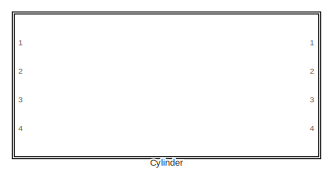
[diagram: root canvas - part 1/3, top left region]
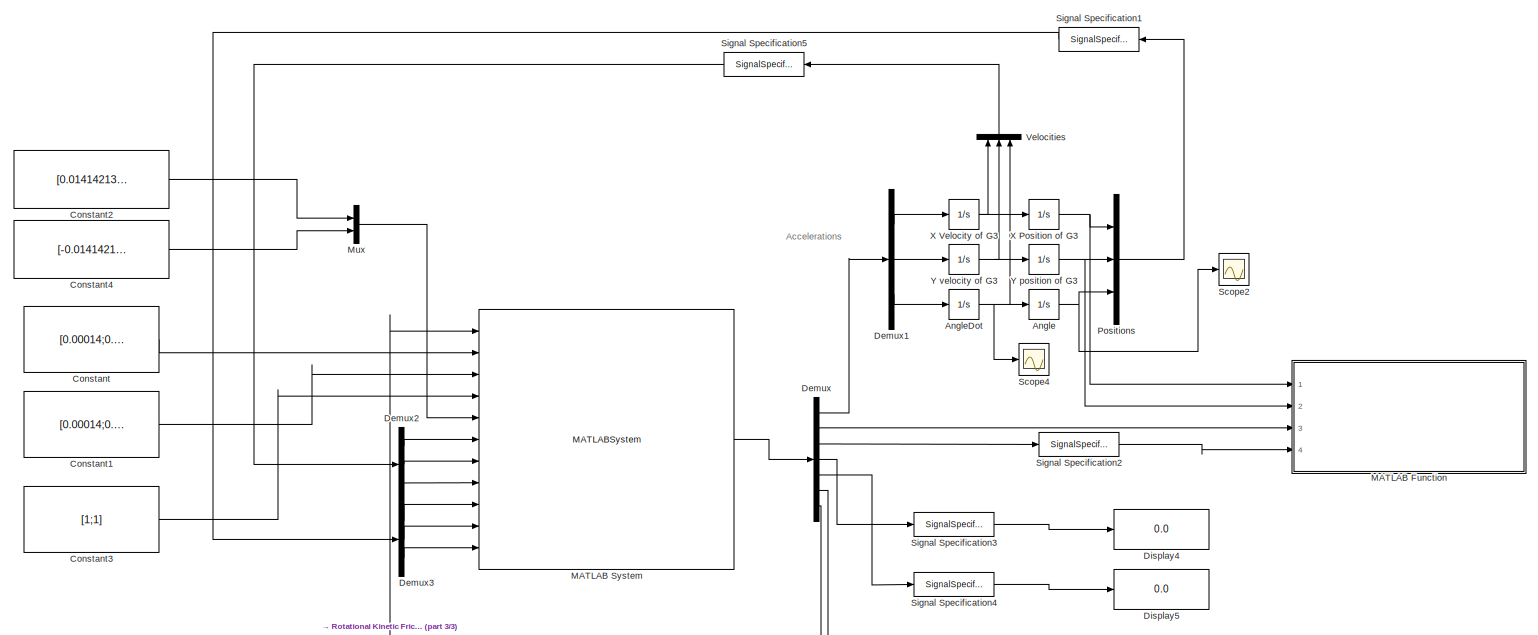
[diagram: root canvas - part 2/3, central region]
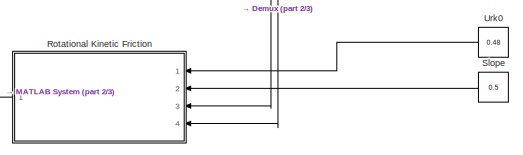
[diagram: root canvas - part 3/3, bottom right region]
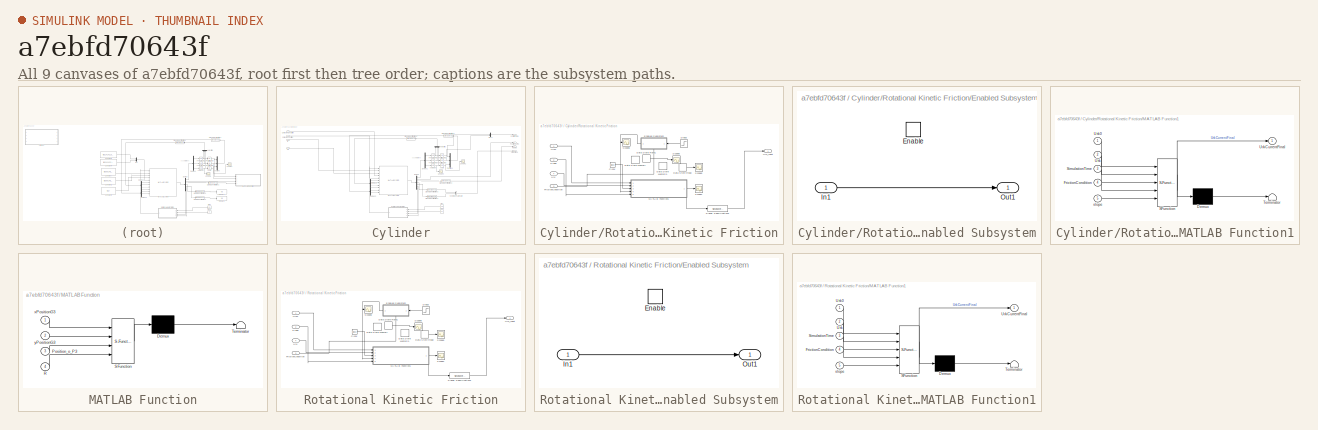
[diagram: thumbnail index - all 9 canvases of the model, root first then tree order]
MODEL slx_a7ebfd70643f
KIND model
CONFIG AbsTol = auto
CONFIG FixedStep = auto
CONFIG MaxStep = auto
CONFIG MinStep = auto
CONFIG RelTol = 1e-3
CONFIG SampleTimeConstraint = Unconstrained
CONFIG Solver = ode45
CONFIG SolverMode = Auto
CONFIG SolverName = ode45
CONFIG StartTime = 0.0
CONFIG StopTime = 2.5
BLOCK [Integrator] Angle
  Ports = [1, 1]
BLOCK [Integrator] AngleDot
  Ports = [1, 1]
BLOCK [Constant] Constant
  Value = [0.00014;0.00014]
BLOCK [Constant] Constant1
  Value = [0.00014;0.00014]
BLOCK [Constant] Constant2
  Value = [0.014142135;0.014142135 ]
BLOCK [Constant] Constant3
  Value = [1;1]
BLOCK [Constant] Constant4
  Value = [-0.014142135;0.014142135 ]
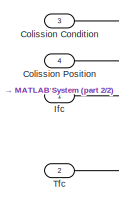
[diagram: Cylinder - part 1/2, top left region]
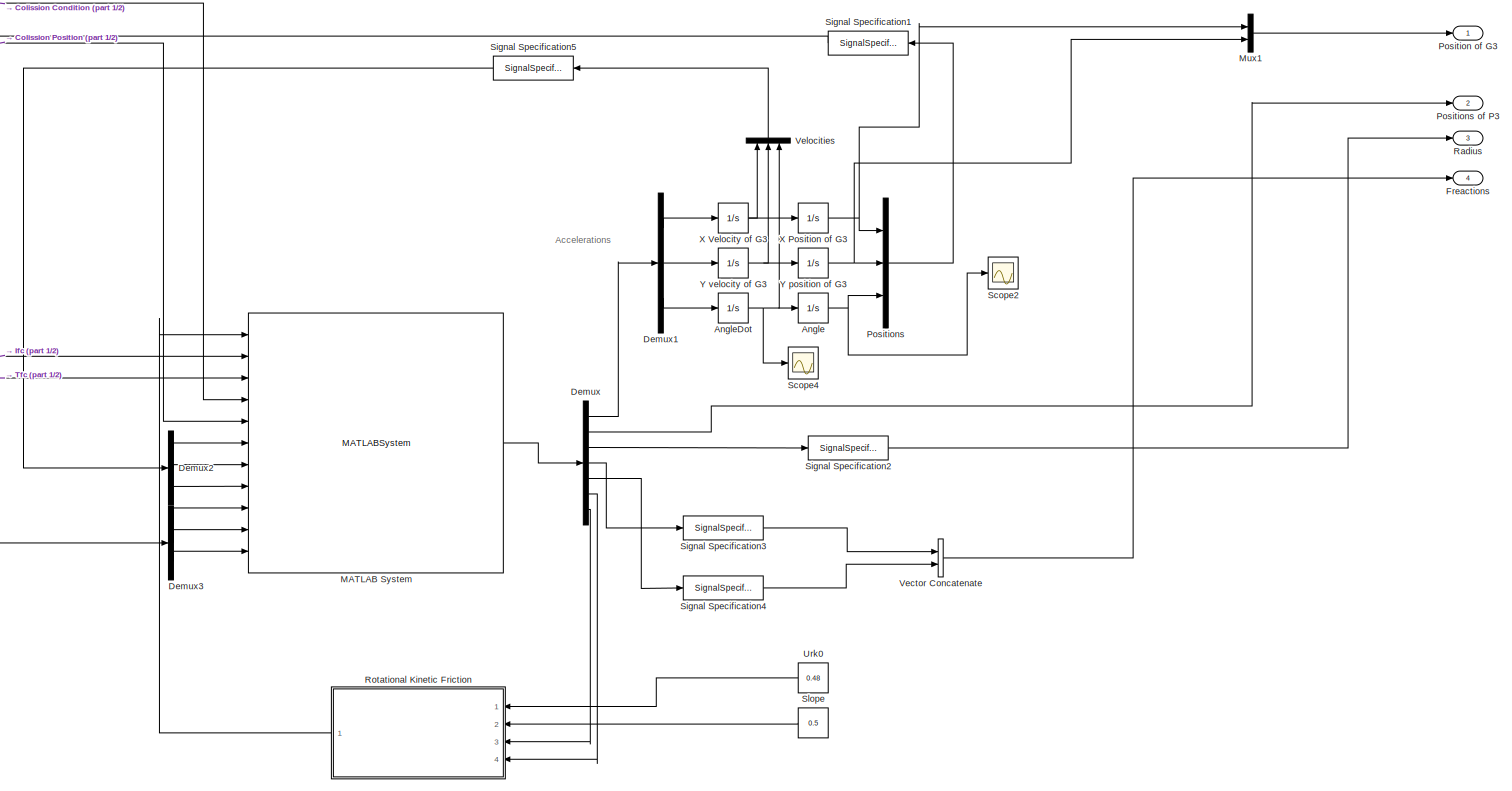
[diagram: Cylinder - part 2/2, center side, full height]
BLOCK [SubSystem] Cylinder
  Ports = [4, 4]
  RequestExecContextInheritance = off
BLOCK [Outport] Cylinder/ Position of G3
  IconDisplay = Port number
BLOCK [Integrator] Cylinder/Angle
  Ports = [1, 1]
BLOCK [Integrator] Cylinder/AngleDot
  Ports = [1, 1]
BLOCK [Inport] Cylinder/Colission Condition
  IconDisplay = Port number
  Port = 3
BLOCK [Inport] Cylinder/Colission Position
  IconDisplay = Port number
  Port = 4
BLOCK [Demux] Cylinder/Demux
  DisplayOption = bar
  Outputs = 7
  Ports = [1, 7]
BLOCK [Demux] Cylinder/Demux1
  DisplayOption = bar
  Outputs = 3
  Ports = [1, 3]
BLOCK [Demux] Cylinder/Demux2
  DisplayOption = bar
  Outputs = 3
  Ports = [1, 3]
BLOCK [Demux] Cylinder/Demux3
  DisplayOption = bar
  Outputs = 3
  Ports = [1, 3]
BLOCK [Outport] Cylinder/Freactions
  IconDisplay = Port number
  Port = 4
BLOCK [Inport] Cylinder/Ifc
  IconDisplay = Port number
BLOCK [MATLABSystem] Cylinder/MATLAB System
  F_k_x = 0.0141264
  F_k_y = 0.0141264
  F_s_x = 0.014715
  F_s_y = 0.014715
  Iz = 6.0000000000000008e-07
  M = 0.003
  MaskDisplay = disp('Cylinder');\nport_label('input',1,'Urk');\nport_label('input',2,'IndexFext');\nport_label('input',3,'ThumbFext');\nport_label('input',4,'CollisionCondition');\nport_label('input',5,'CollisionPosition');\nport_label('input',6,'xDotG3');\nport_label('input',7,'yDotG3');\nport_label('input',8,'angleDot');\nport_label('input',9,'xPositionG3');\nport_label('input',10,'yPositionG3');\nport_label('input',11,'...<+50ch>
  MaskType = Cylinder
  Ports = [11, 1]
  Position_G3_P3_frame_cylinder = [0;0.02]
  Position_o_G3 = [ 0; 0 ]
  R = 0.02
  SimulateUsing = Code generation
  System = Cylinder
  T_k = 0.000188352
  T_s = 0.0001962
  Uck = 0.4
  Ucs = 0.5
  Uk = 0.48
  Urk = 0.48
  Urs = 0.5
  Us = 0.5
  g = 9.81
BLOCK [Mux] Cylinder/Mux1
  DisplayOption = bar
  Inputs = 2
  Ports = [2, 1]
BLOCK [Mux] Cylinder/Positions
  DisplayOption = bar
  Inputs = 3
  Ports = [3, 1]
BLOCK [Outport] Cylinder/Positions of P3
  IconDisplay = Port number
  Port = 2
BLOCK [Outport] Cylinder/Radius
  IconDisplay = Port number
  Port = 3
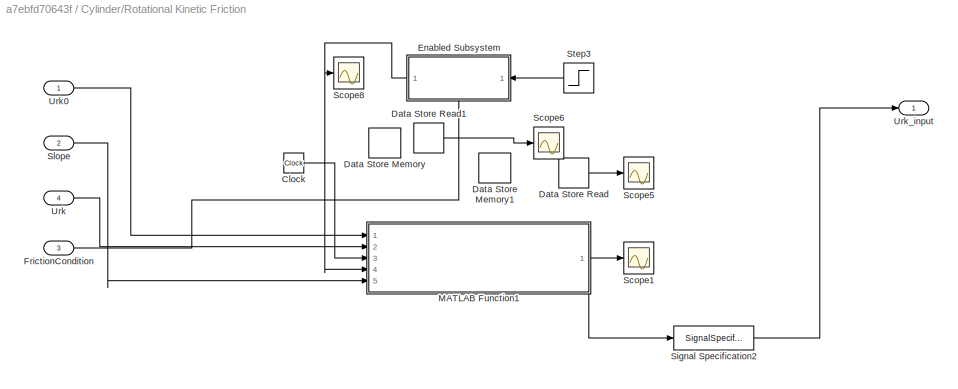
BLOCK [SubSystem] Cylinder/Rotational Kinetic Friction
  Ports = [4, 1]
  RequestExecContextInheritance = off
BLOCK [Clock] Cylinder/Rotational Kinetic Friction/Clock
BLOCK [DataStoreMemory] Cylinder/Rotational Kinetic Friction/Data Store Memory
  DataStoreName = hold_urk
  OutDataTypeStr = double
  ReadBeforeWriteMsg = warning
  SignalType = real
  WriteAfterReadMsg = warning
  WriteAfterWriteMsg = warning
BLOCK [DataStoreMemory] Cylinder/Rotational Kinetic Friction/Data Store Memory1
  DataStoreName = ChangeTime
  OutDataTypeStr = double
  ReadBeforeWriteMsg = warning
  SignalType = real
  WriteAfterReadMsg = warning
  WriteAfterWriteMsg = warning
BLOCK [DataStoreRead] Cylinder/Rotational Kinetic Friction/Data Store Read
  DataStoreName = ChangeTime
  Ports = [0, 1]
BLOCK [DataStoreRead] Cylinder/Rotational Kinetic Friction/Data Store Read1
  DataStoreName = hold_urk
  Ports = [0, 1]
BLOCK [SubSystem] Cylinder/Rotational Kinetic Friction/Enabled Subsystem
  Ports = [1, 1, 1]
  RequestExecContextInheritance = off
  TreatAsAtomicUnit = on
BLOCK [EnablePort] Cylinder/Rotational Kinetic Friction/Enabled Subsystem/Enable
  Ports = []
BLOCK [Inport] Cylinder/Rotational Kinetic Friction/Enabled Subsystem/In1
  IconDisplay = Port number
BLOCK [Outport] Cylinder/Rotational Kinetic Friction/Enabled Subsystem/Out1
  IconDisplay = Port number
BLOCK [Inport] Cylinder/Rotational Kinetic Friction/FrictionCondition
  IconDisplay = Port number
  Port = 3
BLOCK [SubSystem] Cylinder/Rotational Kinetic Friction/MATLAB Function1
  ErrorFcn = Stateflow.Translate.translate
  PermitHierarchicalResolution = ExplicitOnly
  Ports = [5, 1]
  RequestExecContextInheritance = off
  SFBlockType = MATLAB Function
  TreatAsAtomicUnit = on
BLOCK [Demux] Cylinder/Rotational Kinetic Friction/MATLAB Function1/ Demux 
  Outputs = 1
  Ports = [1, 1]
BLOCK [S-Function] Cylinder/Rotational Kinetic Friction/MATLAB Function1/ SFunction 
  EnableBusSupport = on
  FunctionName = sf_sfun
  PortCounts = [5 2]
  Ports = [5, 2]
  Tag = Stateflow S-Function CylinderSim 4
BLOCK [Terminator] Cylinder/Rotational Kinetic Friction/MATLAB Function1/ Terminator 
BLOCK [Inport] Cylinder/Rotational Kinetic Friction/MATLAB Function1/FrictionCondition
  IconDisplay = Port number
  Port = 4
BLOCK [Inport] Cylinder/Rotational Kinetic Friction/MATLAB Function1/SimulationTime
  IconDisplay = Port number
  Port = 3
BLOCK [Inport] Cylinder/Rotational Kinetic Friction/MATLAB Function1/Urk
  IconDisplay = Port number
  Port = 2
BLOCK [Inport] Cylinder/Rotational Kinetic Friction/MATLAB Function1/Urk0
  IconDisplay = Port number
BLOCK [Outport] Cylinder/Rotational Kinetic Friction/MATLAB Function1/UrkCurrentFinal
  IconDisplay = Port number
BLOCK [Inport] Cylinder/Rotational Kinetic Friction/MATLAB Function1/slope
  IconDisplay = Port number
  Port = 5
BLOCK [Scope] Cylinder/Rotational Kinetic Friction/Scope1
  Floating = off
  NumInputPorts = 1
  Ports = [1]
  SaveName = ScopeData7
  YMax = 1
BLOCK [Scope] Cylinder/Rotational Kinetic Friction/Scope5
  Floating = off
  NumInputPorts = 1
  Ports = [1]
  SaveName = ScopeData9
  YMax = 1
BLOCK [Scope] Cylinder/Rotational Kinetic Friction/Scope6
  Floating = off
  NumInputPorts = 1
  Ports = [1]
  SaveName = ScopeData10
  YMax = 1
BLOCK [Scope] Cylinder/Rotational Kinetic Friction/Scope8
  Floating = off
  NumInputPorts = 1
  Ports = [1]
  SaveName = ScopeData11
BLOCK [SignalSpecification] Cylinder/Rotational Kinetic Friction/Signal Specification2
  Dimensions = 1
BLOCK [Inport] Cylinder/Rotational Kinetic Friction/Slope
  IconDisplay = Port number
  Port = 2
BLOCK [Step] Cylinder/Rotational Kinetic Friction/Step3
  SampleTime = 0
  Time = 0
BLOCK [Inport] Cylinder/Rotational Kinetic Friction/Urk
  IconDisplay = Port number
  Port = 4
BLOCK [Inport] Cylinder/Rotational Kinetic Friction/Urk0
  IconDisplay = Port number
BLOCK [Outport] Cylinder/Rotational Kinetic Friction/Urk_input
  IconDisplay = Port number
BLOCK [Scope] Cylinder/Scope2
  Floating = off
  NumInputPorts = 1
  Ports = [1]
BLOCK [Scope] Cylinder/Scope4
  Floating = off
  NumInputPorts = 1
  Ports = [1]
  SaveName = ScopeData1
BLOCK [SignalSpecification] Cylinder/Signal Specification1
  Dimensions = 3
BLOCK [SignalSpecification] Cylinder/Signal Specification2
  Dimensions = 1
BLOCK [SignalSpecification] Cylinder/Signal Specification3
  Dimensions = 2
BLOCK [SignalSpecification] Cylinder/Signal Specification4
  Dimensions = 2
BLOCK [SignalSpecification] Cylinder/Signal Specification5
  Dimensions = 3
BLOCK [Constant] Cylinder/Slope
  Value = 0.5
BLOCK [Inport] Cylinder/Tfc
  IconDisplay = Port number
  Port = 2
BLOCK [Constant] Cylinder/Urk0
  Value = 0.48
BLOCK [Concatenate] Cylinder/Vector Concatenate
  ConcatenateDimension = 2
  Mode = Multidimensional array
  Ports = [2, 1]
BLOCK [Mux] Cylinder/Velocities
  DisplayOption = bar
  Inputs = 3
  Ports = [3, 1]
BLOCK [Integrator] Cylinder/X Position of G3
  Ports = [1, 1]
BLOCK [Integrator] Cylinder/X Velocity of G3
  Ports = [1, 1]
BLOCK [Integrator] Cylinder/Y position of G3
  Ports = [1, 1]
BLOCK [Integrator] Cylinder/Y velocity of G3 
  Ports = [1, 1]
BLOCK [Demux] Demux
  DisplayOption = bar
  Outputs = 7
  Ports = [1, 7]
BLOCK [Demux] Demux1
  DisplayOption = bar
  Outputs = 3
  Ports = [1, 3]
BLOCK [Demux] Demux2
  DisplayOption = bar
  Outputs = 3
  Ports = [1, 3]
BLOCK [Demux] Demux3
  DisplayOption = bar
  Outputs = 3
  Ports = [1, 3]
BLOCK [Display] Display4
  Decimation = 1
  Ports = [1]
BLOCK [Display] Display5
  Decimation = 1
  Ports = [1]
BLOCK [SubSystem] MATLAB Function
  ErrorFcn = Stateflow.Translate.translate
  PermitHierarchicalResolution = ExplicitOnly
  Ports = [4]
  RequestExecContextInheritance = off
  SFBlockType = MATLAB Function
  TreatAsAtomicUnit = on
BLOCK [Demux] MATLAB Function/ Demux 
  Outputs = 1
  Ports = [1, 1]
BLOCK [S-Function] MATLAB Function/ SFunction 
  EnableBusSupport = on
  FunctionName = sf_sfun
  PortCounts = [4 1]
  Ports = [4, 1]
  Tag = Stateflow S-Function CylinderSim 2
BLOCK [Terminator] MATLAB Function/ Terminator 
BLOCK [Inport] MATLAB Function/Position_o_P3
  IconDisplay = Port number
  Port = 3
BLOCK [Inport] MATLAB Function/R
  IconDisplay = Port number
  Port = 4
BLOCK [Inport] MATLAB Function/xPositionG3
  IconDisplay = Port number
BLOCK [Inport] MATLAB Function/yPositionG3
  IconDisplay = Port number
  Port = 2
BLOCK [MATLABSystem] MATLAB System
  F_k_x = 0.0141264
  F_k_y = 0.0141264
  F_s_x = 0.014715
  F_s_y = 0.014715
  Iz = 6.0000000000000008e-07
  M = 0.003
  MaskDisplay = disp('Cylinder');\nport_label('input',1,'Urk');\nport_label('input',2,'IndexFext');\nport_label('input',3,'ThumbFext');\nport_label('input',4,'CollisionCondition');\nport_label('input',5,'CollisionPosition');\nport_label('input',6,'xDotG3');\nport_label('input',7,'yDotG3');\nport_label('input',8,'angleDot');\nport_label('input',9,'xPositionG3');\nport_label('input',10,'yPositionG3');\nport_label('input',11,'...<+50ch>
  MaskType = Cylinder
  Ports = [11, 1]
  Position_G3_P3_frame_cylinder = [0;0.02]
  Position_o_G3 = [ 0; 0 ]
  R = 0.02
  SimulateUsing = Code generation
  System = Cylinder
  T_k = 0.000188352
  T_s = 0.0001962
  Uck = 0.4
  Ucs = 0.5
  Uk = 0.48
  Urk = 0.48
  Urs = 0.5
  Us = 0.5
  g = 9.81
BLOCK [Mux] Mux
  DisplayOption = bar
  Inputs = 2
  Ports = [2, 1]
BLOCK [Mux] Positions
  DisplayOption = bar
  Inputs = 3
  Ports = [3, 1]
BLOCK [SubSystem] Rotational Kinetic Friction
  Ports = [4, 1]
  RequestExecContextInheritance = off
BLOCK [Clock] Rotational Kinetic Friction/Clock
BLOCK [DataStoreMemory] Rotational Kinetic Friction/Data Store Memory
  DataStoreName = hold_urk
  OutDataTypeStr = double
  ReadBeforeWriteMsg = warning
  SignalType = real
  WriteAfterReadMsg = warning
  WriteAfterWriteMsg = warning
BLOCK [DataStoreMemory] Rotational Kinetic Friction/Data Store Memory1
  DataStoreName = ChangeTime
  OutDataTypeStr = double
  ReadBeforeWriteMsg = warning
  SignalType = real
  WriteAfterReadMsg = warning
  WriteAfterWriteMsg = warning
BLOCK [DataStoreRead] Rotational Kinetic Friction/Data Store Read
  DataStoreName = ChangeTime
  Ports = [0, 1]
BLOCK [DataStoreRead] Rotational Kinetic Friction/Data Store Read1
  DataStoreName = hold_urk
  Ports = [0, 1]
BLOCK [SubSystem] Rotational Kinetic Friction/Enabled Subsystem
  Ports = [1, 1, 1]
  RequestExecContextInheritance = off
  TreatAsAtomicUnit = on
BLOCK [EnablePort] Rotational Kinetic Friction/Enabled Subsystem/Enable
  Ports = []
BLOCK [Inport] Rotational Kinetic Friction/Enabled Subsystem/In1
  IconDisplay = Port number
BLOCK [Outport] Rotational Kinetic Friction/Enabled Subsystem/Out1
  IconDisplay = Port number
BLOCK [Inport] Rotational Kinetic Friction/FrictionCondition
  IconDisplay = Port number
  Port = 3
BLOCK [SubSystem] Rotational Kinetic Friction/MATLAB Function1
  ErrorFcn = Stateflow.Translate.translate
  PermitHierarchicalResolution = ExplicitOnly
  Ports = [5, 1]
  RequestExecContextInheritance = off
  SFBlockType = MATLAB Function
  TreatAsAtomicUnit = on
BLOCK [Demux] Rotational Kinetic Friction/MATLAB Function1/ Demux 
  Outputs = 1
  Ports = [1, 1]
BLOCK [S-Function] Rotational Kinetic Friction/MATLAB Function1/ SFunction 
  EnableBusSupport = on
  FunctionName = sf_sfun
  PortCounts = [5 2]
  Ports = [5, 2]
  Tag = Stateflow S-Function CylinderSim 3
BLOCK [Terminator] Rotational Kinetic Friction/MATLAB Function1/ Terminator 
BLOCK [Inport] Rotational Kinetic Friction/MATLAB Function1/FrictionCondition
  IconDisplay = Port number
  Port = 4
BLOCK [Inport] Rotational Kinetic Friction/MATLAB Function1/SimulationTime
  IconDisplay = Port number
  Port = 3
BLOCK [Inport] Rotational Kinetic Friction/MATLAB Function1/Urk
  IconDisplay = Port number
  Port = 2
BLOCK [Inport] Rotational Kinetic Friction/MATLAB Function1/Urk0
  IconDisplay = Port number
BLOCK [Outport] Rotational Kinetic Friction/MATLAB Function1/UrkCurrentFinal
  IconDisplay = Port number
BLOCK [Inport] Rotational Kinetic Friction/MATLAB Function1/slope
  IconDisplay = Port number
  Port = 5
BLOCK [Scope] Rotational Kinetic Friction/Scope1
  Floating = off
  NumInputPorts = 1
  Ports = [1]
  SaveName = ScopeData7
  YMax = 1
BLOCK [Scope] Rotational Kinetic Friction/Scope5
  Floating = off
  NumInputPorts = 1
  Ports = [1]
  SaveName = ScopeData9
  YMax = 1
BLOCK [Scope] Rotational Kinetic Friction/Scope6
  Floating = off
  NumInputPorts = 1
  Ports = [1]
  SaveName = ScopeData10
  YMax = 1
BLOCK [Scope] Rotational Kinetic Friction/Scope8
  Floating = off
  NumInputPorts = 1
  Ports = [1]
  SaveName = ScopeData11
BLOCK [SignalSpecification] Rotational Kinetic Friction/Signal Specification2
  Dimensions = 1
BLOCK [Inport] Rotational Kinetic Friction/Slope
  IconDisplay = Port number
  Port = 2
BLOCK [Step] Rotational Kinetic Friction/Step3
  SampleTime = 0
  Time = 0
BLOCK [Inport] Rotational Kinetic Friction/Urk
  IconDisplay = Port number
  Port = 4
BLOCK [Inport] Rotational Kinetic Friction/Urk0
  IconDisplay = Port number
BLOCK [Outport] Rotational Kinetic Friction/Urk_input
  IconDisplay = Port number
BLOCK [Scope] Scope2
  Floating = off
  NumInputPorts = 1
  Ports = [1]
  SaveName = ScopeData4
BLOCK [Scope] Scope4
  Floating = off
  NumInputPorts = 1
  Ports = [1]
  SaveName = ScopeData6
BLOCK [SignalSpecification] Signal Specification1
  Dimensions = 3
BLOCK [SignalSpecification] Signal Specification2
  Dimensions = 1
BLOCK [SignalSpecification] Signal Specification3
  Dimensions = 2
BLOCK [SignalSpecification] Signal Specification4
  Dimensions = 2
BLOCK [SignalSpecification] Signal Specification5
  Dimensions = 3
BLOCK [Constant] Slope
  Value = 0.5
BLOCK [Constant] Urk0
  Value = 0.48
BLOCK [Mux] Velocities
  DisplayOption = bar
  Inputs = 3
  Ports = [3, 1]
BLOCK [Integrator] X Position of G3
  Ports = [1, 1]
BLOCK [Integrator] X Velocity of G3
  Ports = [1, 1]
BLOCK [Integrator] Y position of G3
  Ports = [1, 1]
BLOCK [Integrator] Y velocity of G3 
  Ports = [1, 1]
ANNOTATION (root): Accelerations
ANNOTATION Cylinder: Accelerations
NET Angle:1 -> Positions:3, Scope2:1
NET AngleDot:1 -> Angle:1, Scope4:1, Velocities:3
LINE Constant1:1 -> MATLAB System:3
LINE Constant2:1 -> Mux:1
LINE Constant3:1 -> MATLAB System:4
LINE Constant4:1 -> Mux:2
LINE Constant:1 -> MATLAB System:2
NET Cylinder/Angle:1 -> Cylinder/Positions:3, Cylinder/Scope2:1
NET Cylinder/AngleDot:1 -> Cylinder/Angle:1, Cylinder/Scope4:1, Cylinder/Velocities:3
LINE Cylinder/Colission Condition:1 -> Cylinder/MATLAB System:4
LINE Cylinder/Colission Position:1 -> Cylinder/MATLAB System:5
LINE Cylinder/Demux1:1 -> Cylinder/X Velocity of G3:1
LINE Cylinder/Demux1:2 -> Cylinder/Y velocity of G3 :1
LINE Cylinder/Demux1:3 -> Cylinder/AngleDot:1
LINE Cylinder/Demux2:1 -> Cylinder/MATLAB System:6
LINE Cylinder/Demux2:2 -> Cylinder/MATLAB System:7
LINE Cylinder/Demux2:3 -> Cylinder/MATLAB System:8
LINE Cylinder/Demux3:1 -> Cylinder/MATLAB System:9
LINE Cylinder/Demux3:2 -> Cylinder/MATLAB System:10
LINE Cylinder/Demux3:3 -> Cylinder/MATLAB System:11
LINE Cylinder/Demux:1 -> Cylinder/Demux1:1
LINE Cylinder/Demux:2 -> Cylinder/Positions of P3:1
LINE Cylinder/Demux:3 -> Cylinder/Signal Specification2:1
LINE Cylinder/Demux:4 -> Cylinder/Signal Specification3:1
LINE Cylinder/Demux:5 -> Cylinder/Signal Specification4:1
LINE Cylinder/Demux:6 -> Cylinder/Rotational Kinetic Friction:4
LINE Cylinder/Demux:7 -> Cylinder/Rotational Kinetic Friction:3
LINE Cylinder/Ifc:1 -> Cylinder/MATLAB System:2
LINE Cylinder/MATLAB System:1 -> Cylinder/Demux:1
LINE Cylinder/Mux1:1 -> Cylinder/ Position of G3:1
LINE Cylinder/Positions:1 -> Cylinder/Signal Specification1:1
LINE Cylinder/Rotational Kinetic Friction/Clock:1 -> Cylinder/Rotational Kinetic Friction/MATLAB Function1:3
LINE Cylinder/Rotational Kinetic Friction/Data Store Read1:1 -> Cylinder/Rotational Kinetic Friction/Scope6:1
LINE Cylinder/Rotational Kinetic Friction/Data Store Read:1 -> Cylinder/Rotational Kinetic Friction/Scope5:1
LINE Cylinder/Rotational Kinetic Friction/Enabled Subsystem/In1:1 -> Cylinder/Rotational Kinetic Friction/Enabled Subsystem/Out1:1
NET Cylinder/Rotational Kinetic Friction/Enabled Subsystem:1 -> Cylinder/Rotational Kinetic Friction/MATLAB Function1:4, Cylinder/Rotational Kinetic Friction/Scope8:1
LINE Cylinder/Rotational Kinetic Friction/FrictionCondition:1 -> Cylinder/Rotational Kinetic Friction/Enabled Subsystem:enable
NET Cylinder/Rotational Kinetic Friction/MATLAB Function1:1 -> Cylinder/Rotational Kinetic Friction/Scope1:1, Cylinder/Rotational Kinetic Friction/Signal Specification2:1
LINE Cylinder/Rotational Kinetic Friction/Signal Specification2:1 -> Cylinder/Rotational Kinetic Friction/Urk_input:1
LINE Cylinder/Rotational Kinetic Friction/Slope:1 -> Cylinder/Rotational Kinetic Friction/MATLAB Function1:5
LINE Cylinder/Rotational Kinetic Friction/Step3:1 -> Cylinder/Rotational Kinetic Friction/Enabled Subsystem:1
LINE Cylinder/Rotational Kinetic Friction/Urk0:1 -> Cylinder/Rotational Kinetic Friction/MATLAB Function1:1
LINE Cylinder/Rotational Kinetic Friction/Urk:1 -> Cylinder/Rotational Kinetic Friction/MATLAB Function1:2
LINE Cylinder/Rotational Kinetic Friction:1 -> Cylinder/MATLAB System:1
LINE Cylinder/Signal Specification1:1 -> Cylinder/Demux3:1
LINE Cylinder/Signal Specification2:1 -> Cylinder/Radius:1
LINE Cylinder/Signal Specification3:1 -> Cylinder/Vector Concatenate:1
LINE Cylinder/Signal Specification4:1 -> Cylinder/Vector Concatenate:2
LINE Cylinder/Signal Specification5:1 -> Cylinder/Demux2:1
LINE Cylinder/Slope:1 -> Cylinder/Rotational Kinetic Friction:2
LINE Cylinder/Tfc:1 -> Cylinder/MATLAB System:3
LINE Cylinder/Urk0:1 -> Cylinder/Rotational Kinetic Friction:1
LINE Cylinder/Vector Concatenate:1 -> Cylinder/Freactions:1
LINE Cylinder/Velocities:1 -> Cylinder/Signal Specification5:1
NET Cylinder/X Position of G3:1 -> Cylinder/Mux1:1, Cylinder/Positions:1
NET Cylinder/X Velocity of G3:1 -> Cylinder/Velocities:1, Cylinder/X Position of G3:1
NET Cylinder/Y position of G3:1 -> Cylinder/Mux1:2, Cylinder/Positions:2
NET Cylinder/Y velocity of G3 :1 -> Cylinder/Velocities:2, Cylinder/Y position of G3:1
LINE Demux1:1 -> X Velocity of G3:1
LINE Demux1:2 -> Y velocity of G3 :1
LINE Demux1:3 -> AngleDot:1
LINE Demux2:1 -> MATLAB System:6
LINE Demux2:2 -> MATLAB System:7
LINE Demux2:3 -> MATLAB System:8
LINE Demux3:1 -> MATLAB System:9
LINE Demux3:2 -> MATLAB System:10
LINE Demux3:3 -> MATLAB System:11
LINE Demux:1 -> Demux1:1
LINE Demux:2 -> MATLAB Function:3
LINE Demux:3 -> Signal Specification2:1
LINE Demux:4 -> Signal Specification3:1
LINE Demux:5 -> Signal Specification4:1
LINE Demux:6 -> Rotational Kinetic Friction:4
LINE Demux:7 -> Rotational Kinetic Friction:3
LINE MATLAB System:1 -> Demux:1
LINE Mux:1 -> MATLAB System:5
LINE Positions:1 -> Signal Specification1:1
LINE Rotational Kinetic Friction/Clock:1 -> Rotational Kinetic Friction/MATLAB Function1:3
LINE Rotational Kinetic Friction/Data Store Read1:1 -> Rotational Kinetic Friction/Scope6:1
LINE Rotational Kinetic Friction/Data Store Read:1 -> Rotational Kinetic Friction/Scope5:1
LINE Rotational Kinetic Friction/Enabled Subsystem/In1:1 -> Rotational Kinetic Friction/Enabled Subsystem/Out1:1
NET Rotational Kinetic Friction/Enabled Subsystem:1 -> Rotational Kinetic Friction/MATLAB Function1:4, Rotational Kinetic Friction/Scope8:1
LINE Rotational Kinetic Friction/FrictionCondition:1 -> Rotational Kinetic Friction/Enabled Subsystem:enable
NET Rotational Kinetic Friction/MATLAB Function1:1 -> Rotational Kinetic Friction/Scope1:1, Rotational Kinetic Friction/Signal Specification2:1
LINE Rotational Kinetic Friction/Signal Specification2:1 -> Rotational Kinetic Friction/Urk_input:1
LINE Rotational Kinetic Friction/Slope:1 -> Rotational Kinetic Friction/MATLAB Function1:5
LINE Rotational Kinetic Friction/Step3:1 -> Rotational Kinetic Friction/Enabled Subsystem:1
LINE Rotational Kinetic Friction/Urk0:1 -> Rotational Kinetic Friction/MATLAB Function1:1
LINE Rotational Kinetic Friction/Urk:1 -> Rotational Kinetic Friction/MATLAB Function1:2
LINE Rotational Kinetic Friction:1 -> MATLAB System:1
LINE Signal Specification1:1 -> Demux3:1
LINE Signal Specification2:1 -> MATLAB Function:4
LINE Signal Specification3:1 -> Display4:1
LINE Signal Specification4:1 -> Display5:1
LINE Signal Specification5:1 -> Demux2:1
LINE Slope:1 -> Rotational Kinetic Friction:2
LINE Urk0:1 -> Rotational Kinetic Friction:1
LINE Velocities:1 -> Signal Specification5:1
NET X Position of G3:1 -> MATLAB Function:1, Positions:1
NET X Velocity of G3:1 -> Velocities:1, X Position of G3:1
NET Y position of G3:1 -> MATLAB Function:2, Positions:2
NET Y velocity of G3 :1 -> Velocities:2, Y position of G3:1
note: NET lines group one-source signal fan-out (src -> all destinations, sorted); 1:1 wires keep LINE
CHART MATLAB Function states=1 transitions=1
  STATE_LABEL 'eML_blk_kernel()'
  STATE_LABEL "SCRIPT:\nfunction DrawCylinder(xPositionG3,yPositionG3,Position_o_P3,R)\n%#\n    figure(2);\n    clf;\n    t=linspace(0,2*pi,360);\n    plot(xPositionG3,yPositionG3,'r*');\n    hold on\n    plot(Position_o_P3(1),Position_o_P3(2),'r*');\n    x=xPositionG3+R*cos(t);\n    y=yPositionG3+R*sin(t);\n    plot(x,y,'b');\n    hold off\n    axis([-0.4 0.4 -0.3 0.3]);\nend"
CHART Rotational Kinetic Friction/MATLAB Function1 states=1 transitions=1
  STATE_LABEL 'eML_blk_kernel()'
  STATE_LABEL 'SCRIPT:\nfunction UrkCurrentFinal = UrkCurrentCalc(Urk0,Urk,SimulationTime,FrictionCondition,slope)\n%#codegen\nglobal hold_urk ChangeTime;\nif(SimulationTime==0)\n    UrkCurrent=Urk0;\n    hold_urk=Urk0;\nelse\n    if(FrictionCondition==1)\n        UrkCurrent=(hold_urk-(SimulationTime-ChangeTime)*slope);\n    else\n        hold_urk=Urk;\n        ChangeTime=SimulationTime;\n        UrkCurrent=Urk0;\n    end\nend...<+86ch>'
CHART Cylinder/Rotational Kinetic Friction/MATLAB Function1 states=1 transitions=1
  STATE_LABEL 'eML_blk_kernel()'
  STATE_LABEL 'SCRIPT:\nfunction UrkCurrentFinal = UrkCurrentCalc(Urk0,Urk,SimulationTime,FrictionCondition,slope)\n%#codegen\nglobal hold_urk ChangeTime;\nif(SimulationTime==0)\n    UrkCurrent=Urk0;\n    hold_urk=Urk0;\nelse\n    if(FrictionCondition==1)\n        UrkCurrent=(hold_urk-(SimulationTime-ChangeTime)*slope);\n    else\n        hold_urk=Urk;\n        ChangeTime=SimulationTime;\n        UrkCurrent=Urk0;\n    end\nend...<+86ch>'
